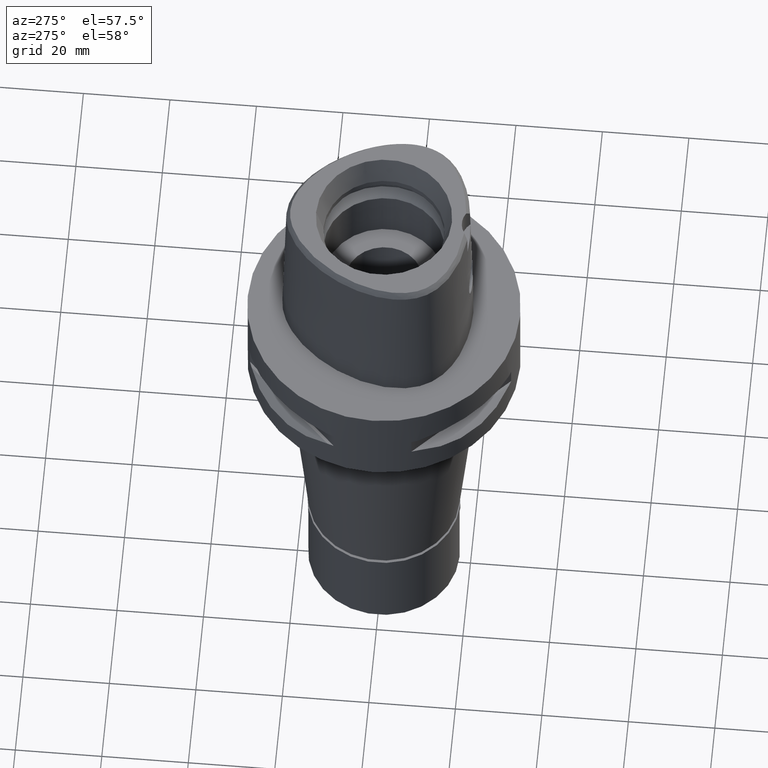
[diagram: clean part render]
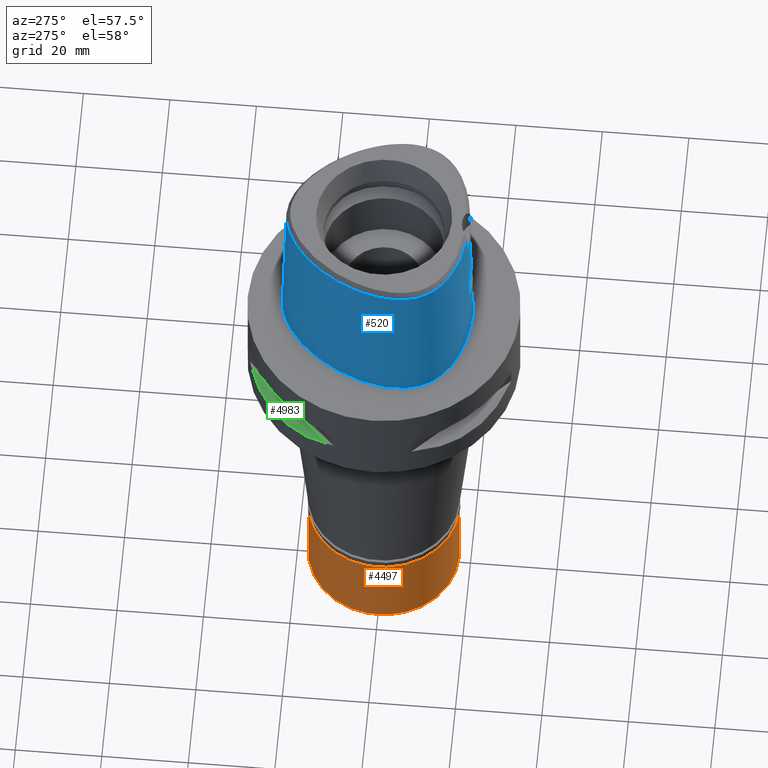
[diagram: same view with three faces highlighted in distinct colors, each labeled with its STEP entity id]
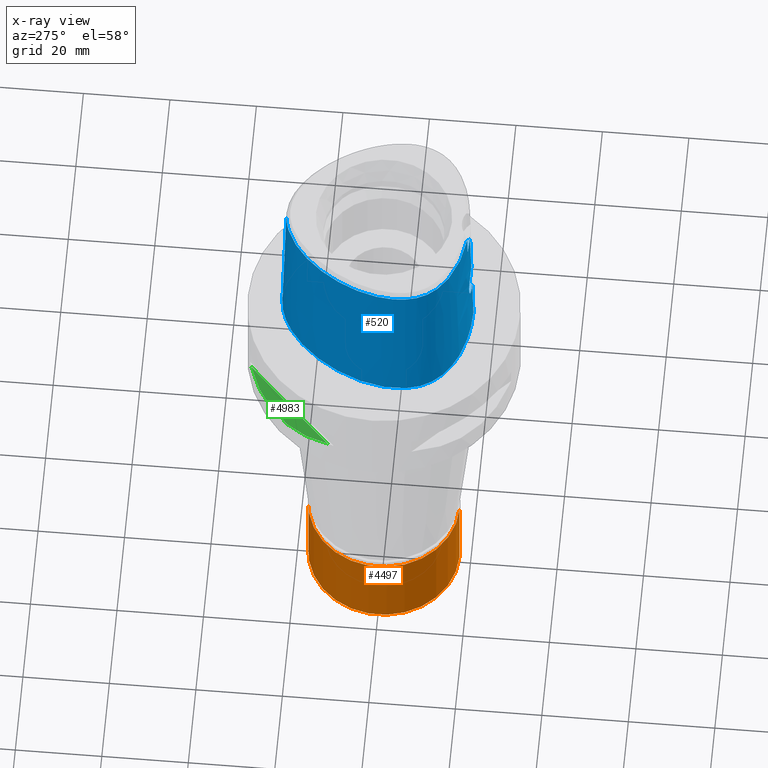
[diagram: x-ray of the same camera — body ghosted, the three highlighted faces saturated]
A machine part, auxiliary view with three faces highlighted in distinct colors.
The next image is the same camera in x-ray (body ghosted, the three faces saturated) — at least one of them is partly hidden behind the body in this view.
Their STEP definitions:

[orange] entity #4497 — the highlighted cylindrical surface (partial cylindrical patch) has radius 17.5 mm, axis along (0, 0, -1).
#84 = CARTESIAN_POINT ( 'NONE',  ( 0.0000000000000000000, 17.50000000000000000, -2.000000000000000000 ) ) ;
#106 = VECTOR ( 'NONE', #4389, 1000.000000000000000 ) ;
#219 = VERTEX_POINT ( 'NONE', #4888 ) ;
#545 = VERTEX_POINT ( 'NONE', #1805 ) ;
#663 = AXIS2_PLACEMENT_3D ( 'NONE', #930, #4034, #2815 ) ;
#737 = AXIS2_PLACEMENT_3D ( 'NONE', #1115, #1794, #2640 ) ;
#881 = LINE ( 'NONE', #3214, #4516 ) ;
#917 = CIRCLE ( 'NONE', #663, 17.50000000000000000 ) ;
#930 = CARTESIAN_POINT ( 'NONE',  ( 0.0000000000000000000, 0.0000000000000000000, -2.000000000000000000 ) ) ;
#1115 = CARTESIAN_POINT ( 'NONE',  ( 0.0000000000000000000, 0.0000000000000000000, -22.50000000000000000 ) ) ;
#1237 = ORIENTED_EDGE ( 'NONE', *, *, #1534, .T. ) ;
#1276 = ORIENTED_EDGE ( 'NONE', *, *, #3590, .T. ) ;
#1298 = AXIS2_PLACEMENT_3D ( 'NONE', #3730, #4879, #4431 ) ;
#1534 = EDGE_CURVE ( 'NONE', #219, #545, #3938, .T. ) ;
#1539 = CARTESIAN_POINT ( 'NONE',  ( 0.0000000000000000000, -17.50000000000000000, -22.50000000000000000 ) ) ;
#1683 = ORIENTED_EDGE ( 'NONE', *, *, #4956, .F. ) ;
#1794 = DIRECTION ( 'NONE',  ( 0.0000000000000000000, 0.0000000000000000000, 1.000000000000000000 ) ) ;
#1805 = CARTESIAN_POINT ( 'NONE',  ( 0.0000000000000000000, 17.50000000000000000, -22.50000000000000000 ) ) ;
#2175 = FACE_OUTER_BOUND ( 'NONE', #4182, .T. ) ;
#2204 = ORIENTED_EDGE ( 'NONE', *, *, #2780, .T. ) ;
#2323 = VERTEX_POINT ( 'NONE', #1539 ) ;
#2640 = DIRECTION ( 'NONE',  ( 0.0000000000000000000, 1.000000000000000000, 0.0000000000000000000 ) ) ;
#2780 = EDGE_CURVE ( 'NONE', #545, #2323, #3819, .T. ) ;
#2815 = DIRECTION ( 'NONE',  ( 0.0000000000000000000, -1.000000000000000000, 0.0000000000000000000 ) ) ;
#2882 = CYLINDRICAL_SURFACE ( 'NONE', #1298, 17.50000000000000000 ) ;
#3214 = CARTESIAN_POINT ( 'NONE',  ( 0.0000000000000000000, -17.50000000000000000, -2.000000000000000000 ) ) ;
#3238 = DIRECTION ( 'NONE',  ( 0.0000000000000000000, 0.0000000000000000000, -1.000000000000000000 ) ) ;
#3590 = EDGE_CURVE ( 'NONE', #4208, #219, #917, .T. ) ;
#3730 = CARTESIAN_POINT ( 'NONE',  ( 0.0000000000000000000, 0.0000000000000000000, 0.0000000000000000000 ) ) ;
#3819 = CIRCLE ( 'NONE', #737, 17.50000000000000000 ) ;
#3841 = CARTESIAN_POINT ( 'NONE',  ( 0.0000000000000000000, -17.50000000000000000, -2.000000000000000000 ) ) ;
#3938 = LINE ( 'NONE', #84, #106 ) ;
#4034 = DIRECTION ( 'NONE',  ( 0.0000000000000000000, 0.0000000000000000000, -1.000000000000000000 ) ) ;
#4182 = EDGE_LOOP ( 'NONE', ( #2204, #1683, #1276, #1237 ) ) ;
#4208 = VERTEX_POINT ( 'NONE', #3841 ) ;
#4389 = DIRECTION ( 'NONE',  ( 0.0000000000000000000, 0.0000000000000000000, -1.000000000000000000 ) ) ;
#4431 = DIRECTION ( 'NONE',  ( 0.0000000000000000000, -1.000000000000000000, 0.0000000000000000000 ) ) ;
#4497 = ADVANCED_FACE ( 'NONE', ( #2175 ), #2882, .T. ) ;
#4516 = VECTOR ( 'NONE', #3238, 1000.000000000000000 ) ;
#4879 = DIRECTION ( 'NONE',  ( 0.0000000000000000000, 0.0000000000000000000, -1.000000000000000000 ) ) ;
#4888 = CARTESIAN_POINT ( 'NONE',  ( 0.0000000000000000000, 17.50000000000000000, -2.000000000000000000 ) ) ;
#4956 = EDGE_CURVE ( 'NONE', #4208, #2323, #881, .T. ) ;

[blue] entity #520 — the highlighted face is a freeform B-spline surface patch.
#4 = CARTESIAN_POINT ( 'NONE',  ( -3.704239276368590961, -19.64128040965313460, 33.37395414949332917 ) ) ;
#6 = CARTESIAN_POINT ( 'NONE',  ( -2.870809693610187452, -20.24156730632852330, 12.64324605246986089 ) ) ;
#15 = ORIENTED_EDGE ( 'NONE', *, *, #1630, .F. ) ;
#32 = CARTESIAN_POINT ( 'NONE',  ( -3.848403410397717828, -20.04310851184499498, 16.79149714040717001 ) ) ;
#48 = ORIENTED_EDGE ( 'NONE', *, *, #388, .T. ) ;
#79 = CARTESIAN_POINT ( 'NONE',  ( -1.300728010709000004E-12, -20.38876923348000147, 11.44999999999999929 ) ) ;
#82 = CARTESIAN_POINT ( 'NONE',  ( -16.95889172622826280, -15.67838867224692301, -1.905867323226222154E-08 ) ) ;
#109 = B_SPLINE_CURVE_WITH_KNOTS ( 'NONE', 3,
 ( #1985, #1600, #4340, #870, #3145, #3959, #490, #3204, #4740, #4364, #898, #2434, #2459, #3322, #2905, #1749, #207, #4527, #2135, #4855, #1802, #3703, #970 ),
 .UNSPECIFIED., .F., .F.,
 ( 4, 1, 1, 1, 1, 1, 1, 1, 1, 1, 1, 1, 1, 1, 1, 1, 1, 1, 1, 1, 4 ),
 ( 0.0000000000000000000, 0.03580973941716267261, 0.1234633994701191395, 0.1672902294965448455, 0.2111170595230757452, 0.2549438895495014235, 0.2768573045627142348, 0.2987707195759271017, 0.3206841345891399131, 0.3425975496023527800, 0.3864243796288835964, 0.4302512096552040255, 0.4740780396817349529, 0.5617316997345863649, 0.6493853597875427486, 0.7370390198403942161, 0.8246926798932454616, 0.8685195099196710844, 0.9123463399461705370, 0.9561731699726067069, 1.000000000000000000 ),
 .UNSPECIFIED. ) ;
#130 = CARTESIAN_POINT ( 'NONE',  ( -22.05732874369826746, -6.847636718817725843, -1.905867323226222154E-08 ) ) ;
#175 = ORIENTED_EDGE ( 'NONE', *, *, #1945, .F. ) ;
#191 = CARTESIAN_POINT ( 'NONE',  ( -21.76083719865000177, -6.805026055614000313, 11.93047924216999967 ) ) ;
#207 = CARTESIAN_POINT ( 'NONE',  ( -13.70645028111649033, 15.04851272300516918, 36.52186244847999319 ) ) ;
#210 = CARTESIAN_POINT ( 'NONE',  ( -19.86834446244999697, 4.339653722331000552, 37.25231273573999857 ) ) ;
#230 = CARTESIAN_POINT ( 'NONE',  ( -1.656252726929893671, -20.15609978928699064, 19.19765142506413014 ) ) ;
#238 = CARTESIAN_POINT ( 'NONE',  ( -1.042620331105000251E-11, -20.67499999999999716, 1.260473207290999897E-13 ) ) ;
#278 = CARTESIAN_POINT ( 'NONE',  ( -0.2473412322782437278, -20.18628283969000492, 19.54999999999999716 ) ) ;
#280 = CARTESIAN_POINT ( 'NONE',  ( -6.344715575919999573, -20.31619964533999934, -0.7304375046223999801 ) ) ;
#305 = CARTESIAN_POINT ( 'NONE',  ( 0.6840430852724000976, -20.68668154550000082, -0.7304375046223999801 ) ) ;
#331 = CARTESIAN_POINT ( 'NONE',  ( -3.952964639637182476, -20.08622609015915472, 14.60890045227376532 ) ) ;
#332 = CARTESIAN_POINT ( 'NONE',  ( -6.175998627111000339, -19.37631808787999788, 37.25231273573999857 ) ) ;
#359 = CARTESIAN_POINT ( 'NONE',  ( -2.857836109606429087, -20.09902107152586126, 18.36973246307253049 ) ) ;
#377 = CARTESIAN_POINT ( 'NONE',  ( 6.819983240112976965E-09, -19.98212988583090066, 27.71666688228239650 ) ) ;
#384 = CARTESIAN_POINT ( 'NONE',  ( -2.875757950340810609, -20.24102512592879677, 12.64823125461289521 ) ) ;
#388 = EDGE_CURVE ( 'NONE', #3133, #2103, #4115, .T. ) ;
#409 = CARTESIAN_POINT ( 'NONE',  ( -2.904838724128467664, -20.23782704190360704, 12.67778573503113471 ) ) ;
#440 = CARTESIAN_POINT ( 'NONE',  ( -3.474550157058655664, -20.06258684786187274, 17.58509941785006703 ) ) ;
#490 = CARTESIAN_POINT ( 'NONE',  ( -17.90324032096455298, -13.53935111955482817, 36.52186244847999319 ) ) ;
#514 = CARTESIAN_POINT ( 'NONE',  ( -1.592612062464957123, -20.34460894491118310, 11.77623291199202349 ) ) ;
#516 = CARTESIAN_POINT ( 'NONE',  ( -2.564517727055091179, 23.29328125047070230, -1.905867323226222154E-08 ) ) ;
#520 = ADVANCED_FACE ( 'NONE', ( #951 ), #3775, .T. ) ;
#524 = CARTESIAN_POINT ( 'NONE',  ( -21.36961517491999984, -0.3886497612876000374, 24.59139598895000134 ) ) ;
#543 = CARTESIAN_POINT ( 'NONE',  ( -7.580410837940000590, 21.33037925912000077, -0.7304375046223999801 ) ) ;
#567 = CARTESIAN_POINT ( 'NONE',  ( -0.6149727124666999334, 23.51889464490000137, -0.7304375046223999801 ) ) ;
#595 = CARTESIAN_POINT ( 'NONE',  ( -21.57281238842000093, -9.001246193935999784, -0.7304375046223999801 ) ) ;
#615 = CARTESIAN_POINT ( 'NONE',  ( -1.435263460293925819, -20.16346600381253040, 19.28743623777244309 ) ) ;
#636 = ORIENTED_EDGE ( 'NONE', *, *, #1570, .T. ) ;
#684 = CARTESIAN_POINT ( 'NONE',  ( 0.4560943669544999524, -20.69106768042000155, -0.7304375046223999801 ) ) ;
#706 = CARTESIAN_POINT ( 'NONE',  ( -3.921269265875852561, -20.09311890564765335, 14.47775228275580872 ) ) ;
#707 = CARTESIAN_POINT ( 'NONE',  ( -20.94844325466000257, -10.61175396820999950, -0.7304375046223999801 ) ) ;
#735 = CARTESIAN_POINT ( 'NONE',  ( -3.704467467890589560, -20.04996865237293591, 17.13733399074684272 ) ) ;
#765 = CARTESIAN_POINT ( 'NONE',  ( -3.623054736480678883, -20.05423874947347684, 17.31100359227538732 ) ) ;
#787 = CARTESIAN_POINT ( 'NONE',  ( -2.236225399044929674, -20.13170464962383122, 18.87669531694418978 ) ) ;
#814 = CARTESIAN_POINT ( 'NONE',  ( -3.744859968352565627, -20.12555785049274704, 13.95773689203759638 ) ) ;
#818 = CARTESIAN_POINT ( 'NONE',  ( 5.537052840691000171E-11, 23.47499999999000053, 1.231977482991999938E-13 ) ) ;
#821 = CARTESIAN_POINT ( 'NONE',  ( -1.300728010709000004E-12, -20.38876923348000147, 11.44999999999999929 ) ) ;
#870 = CARTESIAN_POINT ( 'NONE',  ( -10.91891098964882367, -18.03046406390372525, 36.52186244847999319 ) ) ;
#898 = CARTESIAN_POINT ( 'NONE',  ( -20.67704215115812616, -8.734985316449673576, 36.52186244847999319 ) ) ;
#903 = CARTESIAN_POINT ( 'NONE',  ( 0.4823619555720999874, 23.48603817776999847, -0.7304375046223999801 ) ) ;
#922 = EDGE_CURVE ( 'NONE', #2103, #4147, #1855, .T. ) ;
#925 = CARTESIAN_POINT ( 'NONE',  ( -0.8548392423343361690, 23.47500000047769930, -1.905867323226222154E-08 ) ) ;
#931 = CARTESIAN_POINT ( 'NONE',  ( 0.6850314194548999813, 22.83959063240000020, 24.59139598895000134 ) ) ;
#944 = CARTESIAN_POINT ( 'NONE',  ( -1.812541018710777552, -20.33144879143533501, 11.87771303032907255 ) ) ;
#951 = FACE_OUTER_BOUND ( 'NONE', #3797, .T. ) ;
#970 = CARTESIAN_POINT ( 'NONE',  ( -1.605102685647000189E-11, 22.56201468012000078, 36.52186680743999858 ) ) ;
#976 = CARTESIAN_POINT ( 'NONE',  ( -14.42198651666000053, 15.65278599968000073, -0.7304375046223999801 ) ) ;
#1006 = CARTESIAN_POINT ( 'NONE',  ( -17.53318591718999642, 10.12278937890000030, 24.59139598895000134 ) ) ;
#1026 = CARTESIAN_POINT ( 'NONE',  ( -1.543048130381289074, -20.15993798682084659, 19.24453660913574282 ) ) ;
#1027 = CARTESIAN_POINT ( 'NONE',  ( -11.13012658271999911, -18.61140123515000155, 11.93047924216999967 ) ) ;
#1049 = CARTESIAN_POINT ( 'NONE',  ( -14.21104807808999837, -16.40237719935000271, 37.25231273573999857 ) ) ;
#1078 = CARTESIAN_POINT ( 'NONE',  ( -16.97022730838000371, -15.69280482769000074, -0.7304375046223999801 ) ) ;
#1099 = CARTESIAN_POINT ( 'NONE',  ( -3.830499027160743086, -20.11062698623123524, 14.18153512545000794 ) ) ;
#1101 = CARTESIAN_POINT ( 'NONE',  ( -1.886862291998999908, -20.71358859473999914, -0.7304375046223999801 ) ) ;
#1122 = CARTESIAN_POINT ( 'NONE',  ( -2.696415149899702879, -20.10825975497923679, 18.52316981035092169 ) ) ;
#1124 = CARTESIAN_POINT ( 'NONE',  ( 0.4520368091116000464, -20.37458467777000237, 11.93047924216999967 ) ) ;
#1151 = CARTESIAN_POINT ( 'NONE',  ( -3.637738201363999835, -19.56971413236999879, 36.52186244848000030 ) ) ;
#1154 = CARTESIAN_POINT ( 'NONE',  ( -3.089131642920630583, -20.21685897408095656, 12.88004451868196654 ) ) ;
#1180 = CARTESIAN_POINT ( 'NONE',  ( -4.049848995936174312, -20.05861656952050609, 15.25314035234744559 ) ) ;
#1205 = CARTESIAN_POINT ( 'NONE',  ( -3.748882549353983240, -20.12487725615872236, 13.96753193210200727 ) ) ;
#1257 = CARTESIAN_POINT ( 'NONE',  ( -10.74572891090422111, 19.17433593786475043, -1.905867323226222154E-08 ) ) ;
#1283 = VERTEX_POINT ( 'NONE', #4976 ) ;
#1288 = CARTESIAN_POINT ( 'NONE',  ( -2.373090352893000077, 22.37624364048000203, 37.25231273573999857 ) ) ;
#1311 = CARTESIAN_POINT ( 'NONE',  ( 0.7234356448558999508, 23.47140592231999889, -0.7304375046223999801 ) ) ;
#1313 = ORIENTED_EDGE ( 'NONE', *, *, #4562, .F. ) ;
#1315 = VERTEX_POINT ( 'NONE', #821 ) ;
#1335 = CARTESIAN_POINT ( 'NONE',  ( -18.08416037937000098, 10.44089486993999927, -0.7304375046223999801 ) ) ;
#1356 = CARTESIAN_POINT ( 'NONE',  ( 0.6658293067543999966, 22.52368298743000352, 37.25231273573999857 ) ) ;
#1378 = CARTESIAN_POINT ( 'NONE',  ( -17.25769868609999946, 9.963736633383000196, 37.25231273573999857 ) ) ;
#1403 = CARTESIAN_POINT ( 'NONE',  ( -2.095753548414850620, -20.13818364214428058, 18.96577014705866304 ) ) ;
#1404 = CARTESIAN_POINT ( 'NONE',  ( -19.66427014271999951, -12.83600704414999960, -0.7304375046223999801 ) ) ;
#1423 = CARTESIAN_POINT ( 'NONE',  ( 0.4439216934258999880, -19.74161867245999957, 37.25231273573999857 ) ) ;
#1444 = CARTESIAN_POINT ( 'NONE',  ( -6.232237610047000054, -19.68961194036999984, 24.59139598895000134 ) ) ;
#1470 = CARTESIAN_POINT ( 'NONE',  ( -2.187955111052514390, -20.13397228737158429, 18.90818030783675852 ) ) ;
#1472 = CARTESIAN_POINT ( 'NONE',  ( -17.88993667688999878, -13.52675031937000050, 37.25231273573999857 ) ) ;
#1491 = CARTESIAN_POINT ( 'NONE',  ( -2.823299992937056135, -20.10104229143709276, 18.40378355436299529 ) ) ;
#1493 = CARTESIAN_POINT ( 'NONE',  ( -11.23887130101999965, -18.91049775602000338, -0.7304375046223999801 ) ) ;
#1518 = CARTESIAN_POINT ( 'NONE',  ( -4.048193638326213595, -20.04945813672254573, 15.62509932612366192 ) ) ;
#1549 = CARTESIAN_POINT ( 'NONE',  ( -3.294464282139042854, -20.19175818983875814, 13.14063372506621796 ) ) ;
#1570 = EDGE_CURVE ( 'NONE', #4136, #3133, #109, .T. ) ;
#1576 = CARTESIAN_POINT ( 'NONE',  ( -3.698122373792616546, -20.13343971463959647, 13.84482020408002789 ) ) ;
#1578 = CARTESIAN_POINT ( 'NONE',  ( -18.06826688568335726, 10.43171875024557949, -1.905867323226222154E-08 ) ) ;
#1597 = CARTESIAN_POINT ( 'NONE',  ( -1.758544761671194445, -20.33485355119340809, 11.85123508312359064 ) ) ;
#1599 = CARTESIAN_POINT ( 'NONE',  ( -18.56841065177191297, -14.16937988314320229, -1.905867323226222154E-08 ) ) ;
#1600 = CARTESIAN_POINT ( 'NONE',  ( -4.467522189394759202, -19.48130287050514298, 36.52186244847999319 ) ) ;
#1625 = CARTESIAN_POINT ( 'NONE',  ( -14.67337964443133380, -17.21410156291201687, -1.905867323226222154E-08 ) ) ;
#1630 = EDGE_CURVE ( 'NONE', #1315, #4147, #4129, .T. ) ;
#1653 = CARTESIAN_POINT ( 'NONE',  ( -1.554881956804979204, -20.34669101430225524, 11.76035872671680060 ) ) ;
#1662 = CARTESIAN_POINT ( 'NONE',  ( -4.750826260693000513, 21.65775815844999741, 37.25231273573999857 ) ) ;
#1677 = CARTESIAN_POINT ( 'NONE',  ( -20.93173252255313699, -10.60431640644926787, -1.905867323226222154E-08 ) ) ;
#1682 = CARTESIAN_POINT ( 'NONE',  ( -21.62788416947000059, -4.104079497488999806, 24.59139598895000134 ) ) ;
#1698 = CARTESIAN_POINT ( 'NONE',  ( -1.035503055404373818, -20.37488775911209515, 11.54570873351844007 ) ) ;
#1707 = CARTESIAN_POINT ( 'NONE',  ( -10.14358084917999925, 18.45723428822000045, 37.25231273573999857 ) ) ;
#1732 = CARTESIAN_POINT ( 'NONE',  ( -21.44619311054000121, -6.759806576368999842, 24.59139598895000134 ) ) ;
#1749 = CARTESIAN_POINT ( 'NONE',  ( -17.27359245833708101, 9.972912913898538179, 36.52186244847999319 ) ) ;
#1753 = CARTESIAN_POINT ( 'NONE',  ( -21.26836749742999899, -8.910752269881999865, 11.93047924216999967 ) ) ;
#1775 = CARTESIAN_POINT ( 'NONE',  ( -1.768917262173088867, -20.15190475906380030, 19.14568281053183796 ) ) ;
#1777 = CARTESIAN_POINT ( 'NONE',  ( -18.89485297036000233, -12.27684387296000068, 37.25231273573999857 ) ) ;
#1802 = CARTESIAN_POINT ( 'NONE',  ( -2.376843896518320065, 22.39422508474270401, 36.52186244847999319 ) ) ;
#1824 = CARTESIAN_POINT ( 'NONE',  ( -0.5036866637249096668, -20.18406862059043760, 19.52728785669985001 ) ) ;
#1825 = CARTESIAN_POINT ( 'NONE',  ( -6.288476592983999858, -20.00290579286000181, 11.93047924216999967 ) ) ;
#1849 = CARTESIAN_POINT ( 'NONE',  ( -18.12052913882000027, -13.74516036707000133, 24.59139598895000134 ) ) ;
#1855 = B_SPLINE_CURVE_WITH_KNOTS ( 'NONE', 3,
 ( #818, #925, #516, #3629, #2078, #1257, #2838, #1578, #2761, #2059, #3608, #130, #2004, #1677, #3226, #3557, #1599, #82, #1625, #3143, #3176, #3119, #4715 ),
 .UNSPECIFIED., .F., .F.,
 ( 4, 1, 1, 1, 1, 1, 1, 1, 1, 1, 1, 1, 1, 1, 1, 1, 1, 1, 1, 1, 4 ),
 ( 0.0000000000000000000, 0.04166666666751999565, 0.08333333333413001087, 0.1250000000007999990, 0.1666666666674000152, 0.2500000000006000200, 0.3333333333337999971, 0.4166666666671000052, 0.5000000000002999823, 0.5416666666670000296, 0.5833333333335000148, 0.6250000000001999512, 0.6458333333335000148, 0.6666666666667999674, 0.6875000000001000311, 0.7083333333333999837, 0.7500000000000000000, 0.7916666666667000474, 0.8333333333333000637, 0.9166666666666000163, 1.000000000000000000 ),
 .UNSPECIFIED. ) ;
#1880 = CARTESIAN_POINT ( 'NONE',  ( -3.388781880796850388, -20.17907268769689111, 13.28211842279059951 ) ) ;
#1883 = CARTESIAN_POINT ( 'NONE',  ( -14.36818037507000057, -16.67825737506000294, 24.59139598895000134 ) ) ;
#1903 = CARTESIAN_POINT ( 'NONE',  ( -3.755562140673627702, -20.12374194796139193, 13.98397501487714223 ) ) ;
#1925 = VERTEX_POINT ( 'NONE', #3880 ) ;
#1926 = CARTESIAN_POINT ( 'NONE',  ( -3.553766164806683392, -20.15576042543187540, 13.55638603583821222 ) ) ;
#1945 = EDGE_CURVE ( 'NONE', #4136, #2732, #4629, .T. ) ;
#1954 = CARTESIAN_POINT ( 'NONE',  ( -2.421503357379948262, -20.28648737493531939, 12.24279215500327389 ) ) ;
#1981 = CARTESIAN_POINT ( 'NONE',  ( -1.678454493248099144, -20.33967188086277744, 11.81405957882488345 ) ) ;
#1985 = CARTESIAN_POINT ( 'NONE',  ( -3.637738201363999835, -19.56971413236999879, 36.52186244848000030 ) ) ;
#2003 = CARTESIAN_POINT ( 'NONE',  ( 5.537052840691000171E-11, 23.47499999999000053, 1.231977482991999938E-13 ) ) ;
#2004 = CARTESIAN_POINT ( 'NONE',  ( -21.55524826055195575, -8.996025390761413831, -1.905867323226222154E-08 ) ) ;
#2043 = CARTESIAN_POINT ( 'NONE',  ( -0.5821289320346000329, 22.88453105477000094, 24.59139598895000134 ) ) ;
#2059 = CARTESIAN_POINT ( 'NONE',  ( -21.97832647834080078, -0.2810937499166801246, -1.905867323226222154E-08 ) ) ;
#2065 = CARTESIAN_POINT ( 'NONE',  ( -4.868968478619000173, 21.95285551841000071, 24.59139598895000134 ) ) ;
#2078 = CARTESIAN_POINT ( 'NONE',  ( -7.571159434592121151, 21.31457031291499149, -1.905867323226222154E-08 ) ) ;
#2084 = CARTESIAN_POINT ( 'NONE',  ( -7.420053175726001093, 21.05635751774999775, 11.93047924216999967 ) ) ;
#2103 = VERTEX_POINT ( 'NONE', #2003 ) ;
#2113 = CARTESIAN_POINT ( 'NONE',  ( -20.76670354500000215, 4.663413652503000328, -0.7304375046223999801 ) ) ;
#2135 = CARTESIAN_POINT ( 'NONE',  ( -7.108589416785594750, 20.52412325828365525, 36.52186244847999319 ) ) ;
#2138 = CARTESIAN_POINT ( 'NONE',  ( 0.4441907117464000132, 22.53710802772999955, 37.25231273573999857 ) ) ;
#2155 = CARTESIAN_POINT ( 'NONE',  ( -1.517038990534187226, -20.16080850842839567, 19.25515252244158759 ) ) ;
#2177 = CARTESIAN_POINT ( 'NONE',  ( -11.02138186442000034, -18.31230471429000062, 24.59139598895000134 ) ) ;
#2186 = DIRECTION ( 'NONE',  ( 1.954972615637959326E-12, 0.02499051290953949525, -0.9996876883629797206 ) ) ;
#2200 = CARTESIAN_POINT ( 'NONE',  ( -1.300728010709000004E-12, -20.38876923348000147, 11.44999999999999929 ) ) ;
#2211 = EDGE_CURVE ( 'NONE', #1925, #2732, #4692, .T. ) ;
#2224 = CARTESIAN_POINT ( 'NONE',  ( -16.77374387928999866, -15.44292479349000047, 11.93047924216999967 ) ) ;
#2246 = CARTESIAN_POINT ( 'NONE',  ( -3.862607746693165200, -20.10460055501438248, 14.28038032243066624 ) ) ;
#2249 = CARTESIAN_POINT ( 'NONE',  ( -20.09084480806999906, -11.59945465762000083, 11.93047924216999967 ) ) ;
#2275 = CARTESIAN_POINT ( 'NONE',  ( -3.765489374950850454, -20.12204791086957201, 14.00864527312965357 ) ) ;
#2301 = CARTESIAN_POINT ( 'NONE',  ( -3.738021026999547747, -20.04832921641929033, 17.05876513949582929 ) ) ;
#2322 = CARTESIAN_POINT ( 'NONE',  ( -3.736722311398999796, -19.67781602443999844, 31.80000000000000071 ) ) ;
#2324 = CARTESIAN_POINT ( 'NONE',  ( -3.724287987559096180, -20.04899117660409757, 17.09139312267861754 ) ) ;
#2347 = VECTOR ( 'NONE', #4899, 1000.000000000000114 ) ;
#2353 = CARTESIAN_POINT ( 'NONE',  ( -3.408875187705913135, -20.17633333109255744, 13.31312751153962637 ) ) ;
#2428 = CARTESIAN_POINT ( 'NONE',  ( -2.086814383339309575, -20.31269213283853503, 12.02647857451320235 ) ) ;
#2434 = CARTESIAN_POINT ( 'NONE',  ( -21.14970188363441750, -6.717195958887558938, 36.52186244847999319 ) ) ;
#2440 = CARTESIAN_POINT ( 'NONE',  ( -21.99640701162000056, -0.2778990169915000474, -0.7304375046223999801 ) ) ;
#2459 = CARTESIAN_POINT ( 'NONE',  ( -21.32871527669566447, -4.105831244393725044, 36.52186244847999319 ) ) ;
#2464 = CARTESIAN_POINT ( 'NONE',  ( -2.438150636888000378, 22.68791655352000092, 24.59139598895000134 ) ) ;
#2476 = CARTESIAN_POINT ( 'NONE',  ( -1.559921522258002735, -20.34641501698342836, 11.76246137009469805 ) ) ;
#2483 = CARTESIAN_POINT ( 'NONE',  ( -22.26285556100000207, -4.100361500073999466, -0.7304375046223999801 ) ) ;
#2506 = B_SPLINE_CURVE_WITH_KNOTS ( 'NONE', 3,
 ( #3052, #377, #3084, #4595 ),
 .UNSPECIFIED., .F., .F.,
 ( 4, 4 ),
 ( 0.0000000000000000000, 1.000000000000000000 ),
 .UNSPECIFIED. ) ;
#2508 = CARTESIAN_POINT ( 'NONE',  ( -20.46725051748000013, 4.555493675778999219, 11.93047924216999967 ) ) ;
#2533 = CARTESIAN_POINT ( 'NONE',  ( -2.503210920883999879, 22.99958946655999981, 11.93047924216999967 ) ) ;
#2553 = CARTESIAN_POINT ( 'NONE',  ( -2.141634863663407717, -20.13611892945429105, 18.93776449056396416 ) ) ;
#2577 = CARTESIAN_POINT ( 'NONE',  ( -10.91263714611000069, -18.01320819342000235, 37.25231273573999857 ) ) ;
#2592 = CARTESIAN_POINT ( 'NONE',  ( -3.736722311398999796, -19.67781602443999844, 31.80000000000000071 ) ) ;
#2603 = CARTESIAN_POINT ( 'NONE',  ( -1.853278699760999793, -20.08023940082999914, 24.59139598895000134 ) ) ;
#2627 = CARTESIAN_POINT ( 'NONE',  ( -2.467128207655710614, -20.12044499745019266, 18.71456023906526056 ) ) ;
#2628 = CARTESIAN_POINT ( 'NONE',  ( 0.6779535356828000348, -20.37023529614000239, 11.93047924216999967 ) ) ;
#2649 = CARTESIAN_POINT ( 'NONE',  ( -3.081149392577405166, -20.08583124627778105, 18.14629112890300533 ) ) ;
#2650 = CARTESIAN_POINT ( 'NONE',  ( 0.6657744365035001000, -19.73734279743000286, 37.25231273573999857 ) ) ;
#2685 = CARTESIAN_POINT ( 'NONE',  ( -2.945118222696918142, -20.23335776654030127, 12.71958560101020730 ) ) ;
#2706 = CARTESIAN_POINT ( 'NONE',  ( -3.649474620159721017, -20.05281468735726591, 17.25706831817002396 ) ) ;
#2726 = CARTESIAN_POINT ( 'NONE',  ( -3.925407708630975545, -20.04099055260221363, 16.53138977182821634 ) ) ;
#2732 = VERTEX_POINT ( 'NONE', #2592 ) ;
#2761 = CARTESIAN_POINT ( 'NONE',  ( -20.74942740924770845, 4.657187500162146776, -1.905867323226222154E-08 ) ) ;
#2807 = CARTESIAN_POINT ( 'NONE',  ( -1.638635025836901349, -20.34200884320553371, 11.79610711465294237 ) ) ;
#2816 = CARTESIAN_POINT ( 'NONE',  ( -4.987110696544999833, 22.24795287835999957, 11.93047924216999967 ) ) ;
#2817 = ORIENTED_EDGE ( 'NONE', *, *, #2211, .T. ) ;
#2838 = CARTESIAN_POINT ( 'NONE',  ( -14.40795638994645067, 15.64093750030242091, -1.905867323226222154E-08 ) ) ;
#2845 = CARTESIAN_POINT ( 'NONE',  ( -0.5657070418185999872, 22.56734925969999850, 37.25231273573999857 ) ) ;
#2860 = CARTESIAN_POINT ( 'NONE',  ( -2.503154198992994406, -19.81241979316154911, 31.80000012753027150 ) ) ;
#2865 = CARTESIAN_POINT ( 'NONE',  ( -21.05621925657000304, -0.4440251334356000168, 37.25231273573999857 ) ) ;
#2905 = CARTESIAN_POINT ( 'NONE',  ( -19.88562090098500335, 4.345879983791816059, 36.52186244847999319 ) ) ;
#2911 = CARTESIAN_POINT ( 'NONE',  ( -20.96392260645000150, -8.820258345827999946, 24.59139598895000134 ) ) ;
#2957 = CARTESIAN_POINT ( 'NONE',  ( -19.40779775194000223, -12.64961932042000115, 11.93047924216999967 ) ) ;
#2981 = CARTESIAN_POINT ( 'NONE',  ( -1.320565687276267441, -20.16697761691573376, 19.32976498245970376 ) ) ;
#2984 = CARTESIAN_POINT ( 'NONE',  ( -19.81622837480000143, -11.44090478533999899, 24.59139598895000134 ) ) ;
#3011 = CARTESIAN_POINT ( 'NONE',  ( -2.841055161952164010, -20.10000556631501567, 18.38634273630945870 ) ) ;
#3012 = CARTESIAN_POINT ( 'NONE',  ( -18.58171406269000059, -14.18198046248999944, -0.7304375046223999801 ) ) ;
#3034 = CARTESIAN_POINT ( 'NONE',  ( -3.538328569005044333, -20.05892019842456264, 17.47427695038981810 ) ) ;
#3035 = CARTESIAN_POINT ( 'NONE',  ( -19.54161194153999759, -11.28235491307000160, 37.25231273573999857 ) ) ;
#3045 = EDGE_CURVE ( 'NONE', #1925, #1283, #2506, .T. ) ;
#3052 = CARTESIAN_POINT ( 'NONE',  ( 2.041042029990999821E-08, -19.88004246002000031, 31.80000004972000127 ) ) ;
#3061 = CARTESIAN_POINT ( 'NONE',  ( -3.466483550186857610, -20.16833646136318947, 13.40542637771266676 ) ) ;
#3084 = CARTESIAN_POINT ( 'NONE',  ( 6.839967694335260368E-09, -20.08420636275953797, 23.63333344114115775 ) ) ;
#3095 = CARTESIAN_POINT ( 'NONE',  ( -2.647727988100973207, -20.26593689667726750, 12.42012271607942786 ) ) ;
#3117 = CARTESIAN_POINT ( 'NONE',  ( -4.019649019913003940, -20.04316019033985086, 16.01163126943011861 ) ) ;
#3119 = CARTESIAN_POINT ( 'NONE',  ( -2.113823673092658506, -20.67500000047413877, -1.905867323226222154E-08 ) ) ;
#3133 = VERTEX_POINT ( 'NONE', #3822 ) ;
#3143 = CARTESIAN_POINT ( 'NONE',  ( -11.23259756743561688, -18.89324218795852062, -1.905867323226222154E-08 ) ) ;
#3145 = CARTESIAN_POINT ( 'NONE',  ( -14.22011356155871731, -16.41829364186573059, 36.52186244847999319 ) ) ;
#3176 = CARTESIAN_POINT ( 'NONE',  ( -6.341471019296731626, -20.29812500047623658, -1.905867323226222154E-08 ) ) ;
#3204 = CARTESIAN_POINT ( 'NONE',  ( -18.90964971338213019, -12.28759719904713776, 36.52186244847999319 ) ) ;
#3209 = CARTESIAN_POINT ( 'NONE',  ( -7.099337851296999347, 20.50831403500999883, 37.25231273573999857 ) ) ;
#3226 = CARTESIAN_POINT ( 'NONE',  ( -20.34961798598781257, -11.74885742211308148, -1.905867323226222154E-08 ) ) ;
#3232 = CARTESIAN_POINT ( 'NONE',  ( -22.07548128676999966, -6.850245534860000873, -0.7304375046223999801 ) ) ;
#3249 = CARTESIAN_POINT ( 'NONE',  ( -1.975954942184611873, -20.32065689222564231, 11.96260358355417353 ) ) ;
#3260 = CARTESIAN_POINT ( 'NONE',  ( -14.17879764727999969, 15.44741200510999946, 11.93047924216999967 ) ) ;
#3280 = CARTESIAN_POINT ( 'NONE',  ( -21.13154902242000333, -6.714587097123000170, 37.25231273573999857 ) ) ;
#3310 = B_SPLINE_CURVE_WITH_KNOTS ( 'NONE', 3,
 ( #3758, #278, #1824, #4106, #3704, #3377, #2981, #615, #4480, #2155, #4531, #1026, #230, #1775, #3325, #4857, #1403, #2553, #1470, #3429, #787, #3833, #2627, #4950, #1122, #4178, #1491, #3011, #4234, #359, #2649, #4203, #440, #3034, #765, #2706, #4556, #735, #2324, #4581, #2301, #3805, #32, #2726, #4636, #3117, #4660, #4284, #1518, #3474, #4258, #1180, #3503, #331, #706, #2246, #1099, #3400, #2275, #1903, #1205, #814, #1576, #3882, #1926, #4925, #3061, #3451, #2353, #1880, #4973, #1549, #3915, #1154, #4604, #2685, #409, #3856, #384, #6, #3095, #1954, #2428, #3249, #944, #1597, #1981, #2807, #514, #4025, #2476, #1653, #1698, #3528, #79 ),
 .UNSPECIFIED., .F., .F.,
 ( 4, 2, 2, 1, 1, 1, 2, 2, 2, 2, 1, 2, 2, 2, 1, 1, 1, 2, 2, 2, 2, 2, 1, 1, 2, 2, 2, 2, 1, 2, 2, 2, 2, 1, 1, 1, 2, 2, 2, 2, 1, 2, 2, 2, 1, 1, 1, 2, 2, 2, 2, 2, 1, 1, 2, 2, 4 ),
 ( 0.0000000000000000000, 0.06249999999999593381, 0.09374999999999392153, 0.1093749999999928252, 0.1171874999999922839, 0.1210937499999920203, 0.1230468749999917427, 0.1249999999999914652, 0.1562499999999855671, 0.1718749999999823752, 0.1796874999999809874, 0.1835937499999802658, 0.1874999999999795441, 0.2187499999999769351, 0.2343749999999756306, 0.2421874999999752420, 0.2460937499999747702, 0.2480468749999745204, 0.2499999999999742428, 0.3124999999999652500, 0.3437499999999607536, 0.3593749999999589217, 0.3671874999999575895, 0.3710937499999568678, 0.3730468749999569789, 0.3749999999999570899, 0.4374999999999615308, 0.4687499999999638067, 0.4843749999999649170, 0.4921874999999659162, 0.4999999999999669154, 0.5624999999999765743, 0.5937499999999816813, 0.6093749999999842348, 0.6171874999999854561, 0.6210937499999861222, 0.6230468749999863443, 0.6249999999999865663, 0.6562499999999905631, 0.6718749999999925615, 0.6796874999999936717, 0.6835937499999940048, 0.6874999999999944489, 0.7187499999999966693, 0.7343749999999975575, 0.7421874999999980016, 0.7460937499999982236, 0.7480468749999983347, 0.7499999999999983347, 0.8124999999999994449, 0.8437499999999997780, 0.8593749999999997780, 0.8671874999999998890, 0.8710937499999998890, 0.8730468749999997780, 0.8749999999999997780, 1.000000000000000000 ),
 .UNSPECIFIED. ) ;
#3319 = CARTESIAN_POINT ( 'NONE',  ( -3.736722311398999796, -19.67781602443999844, 31.80000000000000071 ) ) ;
#3322 = CARTESIAN_POINT ( 'NONE',  ( -21.07430010672983656, -0.4408303445193160752, 36.52186244847999319 ) ) ;
#3325 = CARTESIAN_POINT ( 'NONE',  ( -1.944872162933173332, -20.14473830020670775, 19.05307826098763613 ) ) ;
#3334 = CARTESIAN_POINT ( 'NONE',  ( -3.637738201363999835, -19.56971413236999879, 36.52186244848000030 ) ) ;
#3377 = CARTESIAN_POINT ( 'NONE',  ( -1.222079501498656962, -20.16967619644332643, 19.36182732690445363 ) ) ;
#3379 = CARTESIAN_POINT ( 'NONE',  ( -20.36913785983999858, -10.35391848712000140, 24.59139598895000134 ) ) ;
#3400 = CARTESIAN_POINT ( 'NONE',  ( -3.788010122578853611, -20.11815763408451474, 14.06624340821270103 ) ) ;
#3402 = CARTESIAN_POINT ( 'NONE',  ( -19.15132536115000050, -12.46323159668999914, 24.59139598895000134 ) ) ;
#3429 = CARTESIAN_POINT ( 'NONE',  ( -2.218923952810184286, -20.13252298611807234, 18.88809933005989095 ) ) ;
#3430 = CARTESIAN_POINT ( 'NONE',  ( -14.52531267205000098, -16.95413755076999962, 11.93047924216999967 ) ) ;
#3438 = CARTESIAN_POINT ( 'NONE',  ( -1.605102685647000189E-11, 22.56201468012000078, 36.52186680743999858 ) ) ;
#3451 = CARTESIAN_POINT ( 'NONE',  ( -3.438474044887640968, -20.17226853620277538, 13.35950353148250436 ) ) ;
#3472 = CARTESIAN_POINT ( 'NONE',  ( -3.671249123513567802, -19.60525173594972514, 34.94790829898666829 ) ) ;
#3474 = CARTESIAN_POINT ( 'NONE',  ( -4.049663826248560916, -20.05088590020228168, 15.56119206774791230 ) ) ;
#3503 = CARTESIAN_POINT ( 'NONE',  ( -4.027530768679776330, -20.06783249596159635, 14.99855479655600732 ) ) ;
#3528 = CARTESIAN_POINT ( 'NONE',  ( -0.5047993661875627147, -20.38876923348000503, 11.44999999999999929 ) ) ;
#3557 = CARTESIAN_POINT ( 'NONE',  ( -19.64947365902260046, -12.82525390652307173, -1.905867323226222154E-08 ) ) ;
#3608 = CARTESIAN_POINT ( 'NONE',  ( -22.24453907902966066, -4.100468749996661444, -1.905867323226222154E-08 ) ) ;
#3613 = CARTESIAN_POINT ( 'NONE',  ( -13.69241990851000068, 15.03666401597000046, 37.25231273573999857 ) ) ;
#3629 = CARTESIAN_POINT ( 'NONE',  ( -5.098437017460804022, 22.52602539107423141, -1.905867323226222154E-08 ) ) ;
#3635 = CARTESIAN_POINT ( 'NONE',  ( -7.259695513510999731, 20.78233577638000185, 24.59139598895000134 ) ) ;
#3664 = CARTESIAN_POINT ( 'NONE',  ( -21.31039847370999851, -4.105938496195999932, 37.25231273573999857 ) ) ;
#3688 = CARTESIAN_POINT ( 'NONE',  ( -0.5985508222506998877, 23.20171284983000248, 11.93047924216999967 ) ) ;
#3703 = CARTESIAN_POINT ( 'NONE',  ( -0.7901461696976632698, 22.56201478746845623, 36.52186244847999319 ) ) ;
#3704 = CARTESIAN_POINT ( 'NONE',  ( -1.025211814385354803, -20.17465818941732891, 19.42048404905330372 ) ) ;
#3758 = CARTESIAN_POINT ( 'NONE',  ( 0.0000000000000000000, -20.18628283968999781, 19.55000000000000071 ) ) ;
#3775 = B_SPLINE_SURFACE_WITH_KNOTS ( 'NONE', 3, 3, ( 
 ( #1311, #4744, #931, #1356 ),
 ( #903, #4762, #4088, #2138 ),
 ( #567, #3688, #2043, #2845 ),
 ( #4832, #2533, #2464, #1288 ),
 ( #4011, #2816, #2065, #1662 ),
 ( #543, #2084, #3635, #3209 ),
 ( #4414, #4434, #4368, #1707 ),
 ( #976, #3260, #4791, #3613 ),
 ( #1335, #4067, #1006, #1378 ),
 ( #2113, #2508, #4813, #210 ),
 ( #2440, #3992, #524, #2865 ),
 ( #2483, #4036, #1682, #3664 ),
 ( #3232, #191, #1732, #3280 ),
 ( #595, #1753, #2911, #4107 ),
 ( #707, #4927, #3379, #4532 ),
 ( #4952, #2249, #2984, #3035 ),
 ( #1404, #2957, #3402, #1777 ),
 ( #3012, #4505, #1849, #1472 ),
 ( #1078, #2224, #4558, #4901 ),
 ( #3807, #3430, #1883, #1049 ),
 ( #1493, #1027, #2177, #2577 ),
 ( #280, #1825, #1444, #332 ),
 ( #1101, #4157, #2603, #4583 ),
 ( #684, #1124, #3781, #1423 ),
 ( #305, #2628, #4180, #2650 ) ),
 .UNSPECIFIED., .F., .F., .F.,
 ( 4, 1, 1, 1, 1, 1, 1, 1, 1, 1, 1, 1, 1, 1, 1, 1, 1, 1, 1, 1, 1, 1, 4 ),
 ( 4, 4 ),
 ( -0.01173777939052000029, 0.0000000000000000000, 0.04166666666751999565, 0.08333333333413001087, 0.1250000000007999990, 0.1666666666674000152, 0.2500000000006000200, 0.3333333333337999971, 0.4166666666671000052, 0.5000000000002999823, 0.5416666666670000296, 0.5833333333335000148, 0.6250000000001999512, 0.6458333333335000148, 0.6666666666667999674, 0.6875000000001000311, 0.7083333333333999837, 0.7500000000000000000, 0.7916666666667000474, 0.8333333333333000637, 0.9166666666666000163, 1.000000000000000000, 1.008985696609000060 ),
 ( 6.000221583479999909E-09, 0.9999996939886000025 ),
 .UNSPECIFIED. ) ;
#3781 = CARTESIAN_POINT ( 'NONE',  ( 0.4479792512688000050, -20.05810167511000230, 24.59139598895000134 ) ) ;
#3797 = EDGE_LOOP ( 'NONE', ( #15, #1313, #4978, #2817, #175, #636, #48, #4509 ) ) ;
#3805 = CARTESIAN_POINT ( 'NONE',  ( -3.740129524201757150, -20.04822853724978060, 17.05370687140962005 ) ) ;
#3807 = CARTESIAN_POINT ( 'NONE',  ( -14.68244496902000051, -17.23001772647999985, -0.7304375046223999801 ) ) ;
#3822 = CARTESIAN_POINT ( 'NONE',  ( -1.605102685647000189E-11, 22.56201468012000078, 36.52186680743999858 ) ) ;
#3833 = CARTESIAN_POINT ( 'NONE',  ( -2.360389010911050800, -20.12578017861218882, 18.79373387522195316 ) ) ;
#3856 = CARTESIAN_POINT ( 'NONE',  ( -2.887412005234532675, -20.23974548682601693, 12.66003157092501930 ) ) ;
#3880 = CARTESIAN_POINT ( 'NONE',  ( 2.041042029990999821E-08, -19.88004246002000031, 31.80000004972000127 ) ) ;
#3882 = CARTESIAN_POINT ( 'NONE',  ( -3.646271025386284670, -20.14180172674243963, 13.73229968810705515 ) ) ;
#3915 = CARTESIAN_POINT ( 'NONE',  ( -3.215358272887883562, -20.20174660046962245, 13.03391498473813748 ) ) ;
#3959 = CARTESIAN_POINT ( 'NONE',  ( -16.39211280191991449, -14.95758113319158689, 36.52186244847999319 ) ) ;
#3992 = CARTESIAN_POINT ( 'NONE',  ( -21.68301109326999665, -0.3332743891395000269, 11.93047924216999967 ) ) ;
#4011 = CARTESIAN_POINT ( 'NONE',  ( -5.105252914471000381, 22.54305023832000288, -0.7304375046223999801 ) ) ;
#4025 = CARTESIAN_POINT ( 'NONE',  ( -1.572984596531428858, -20.34569619827913201, 11.76794029727377122 ) ) ;
#4036 = CARTESIAN_POINT ( 'NONE',  ( -21.94536986522999911, -4.102220498782000568, 11.93047924216999967 ) ) ;
#4067 = CARTESIAN_POINT ( 'NONE',  ( -17.80867314828000403, 10.28184212442000067, 11.93047924216999967 ) ) ;
#4088 = CARTESIAN_POINT ( 'NONE',  ( 0.4569144596883000231, 22.85341807774999978, 24.59139598895000134 ) ) ;
#4106 = CARTESIAN_POINT ( 'NONE',  ( -0.8941136475798193706, -20.17742596329177118, 19.45229334933474163 ) ) ;
#4107 = CARTESIAN_POINT ( 'NONE',  ( -20.65947771545999956, -8.729764421775000116, 37.25231273573999857 ) ) ;
#4115 = LINE ( 'NONE', #3438, #4856 ) ;
#4129 = LINE ( 'NONE', #2200, #2347 ) ;
#4136 = VERTEX_POINT ( 'NONE', #3334 ) ;
#4147 = VERTEX_POINT ( 'NONE', #238 ) ;
#4157 = CARTESIAN_POINT ( 'NONE',  ( -1.870070495880000072, -20.39691399779000136, 11.93047924216999967 ) ) ;
#4178 = CARTESIAN_POINT ( 'NONE',  ( -2.781497320434850540, -20.10345565782016308, 18.44409576488488867 ) ) ;
#4180 = CARTESIAN_POINT ( 'NONE',  ( 0.6718639860931000518, -20.05378904678000040, 24.59139598895000134 ) ) ;
#4203 = CARTESIAN_POINT ( 'NONE',  ( -3.258446753581197175, -20.07522384658359016, 17.91983021284886846 ) ) ;
#4234 = CARTESIAN_POINT ( 'NONE',  ( -2.852856104025951023, -20.09931387729061569, 18.37467926461776813 ) ) ;
#4258 = CARTESIAN_POINT ( 'NONE',  ( -4.050018014422889223, -20.05167593067619691, 15.52805627100407371 ) ) ;
#4284 = CARTESIAN_POINT ( 'NONE',  ( -4.044848056823780347, -20.04744994059091923, 15.72117637690715064 ) ) ;
#4340 = CARTESIAN_POINT ( 'NONE',  ( -7.300578999875554587, -19.07170748891588730, 36.52186244847999319 ) ) ;
#4364 = CARTESIAN_POINT ( 'NONE',  ( -20.09619618741027836, -10.23243843868193892, 36.52186244847999319 ) ) ;
#4368 = CARTESIAN_POINT ( 'NONE',  ( -10.34823247788999900, 18.70095511019999890, 24.59139598895000134 ) ) ;
#4407 = CARTESIAN_POINT ( 'NONE',  ( 2.041042029990999821E-08, -19.88004246002000031, 31.80000004972000127 ) ) ;
#4414 = CARTESIAN_POINT ( 'NONE',  ( -10.75753573533000029, 19.18839675414999846, -0.7304375046223999801 ) ) ;
#4434 = CARTESIAN_POINT ( 'NONE',  ( -10.55288410661000142, 18.94467593218000090, 11.93047924216999967 ) ) ;
#4480 = CARTESIAN_POINT ( 'NONE',  ( -1.492522727690081874, -20.16161937968067974, 19.26502569008681931 ) ) ;
#4505 = CARTESIAN_POINT ( 'NONE',  ( -18.35112160075999910, -13.96357041477999950, 11.93047924216999967 ) ) ;
#4509 = ORIENTED_EDGE ( 'NONE', *, *, #922, .T. ) ;
#4527 = CARTESIAN_POINT ( 'NONE',  ( -10.15538788053240715, 18.47129535093662156, 36.52186244847999319 ) ) ;
#4531 = CARTESIAN_POINT ( 'NONE',  ( -1.533377486156251024, -20.16026360294686981, 19.24851053760685105 ) ) ;
#4532 = CARTESIAN_POINT ( 'NONE',  ( -20.07948516243000014, -10.22500074657000013, 37.25231273573999857 ) ) ;
#4556 = CARTESIAN_POINT ( 'NONE',  ( -3.686560471764692259, -20.05088322548417068, 17.17709135335520898 ) ) ;
#4558 = CARTESIAN_POINT ( 'NONE',  ( -16.57726045018999983, -15.19304475929000020, 24.59139598895000134 ) ) ;
#4562 = EDGE_CURVE ( 'NONE', #1283, #1315, #3310, .T. ) ;
#4581 = CARTESIAN_POINT ( 'NONE',  ( -3.732557508995177908, -20.04859144260194981, 17.07180291399460259 ) ) ;
#4583 = CARTESIAN_POINT ( 'NONE',  ( -1.836486903641000090, -19.76356480388000136, 37.25231273573999857 ) ) ;
#4595 = CARTESIAN_POINT ( 'NONE',  ( 0.0000000000000000000, -20.18628283968999781, 19.55000000000000071 ) ) ;
#4604 = CARTESIAN_POINT ( 'NONE',  ( -3.024127618929794981, -20.22444760030290567, 12.80466032897619222 ) ) ;
#4629 = B_SPLINE_CURVE_WITH_KNOTS ( 'NONE', 3,
 ( #1151, #3472, #4, #2322 ),
 .UNSPECIFIED., .F., .F.,
 ( 4, 4 ),
 ( 0.0000000000000000000, 1.000000000000000000 ),
 .UNSPECIFIED. ) ;
#4636 = CARTESIAN_POINT ( 'NONE',  ( -4.001055636210810285, -20.04208398455349993, 16.14154222857778009 ) ) ;
#4660 = CARTESIAN_POINT ( 'NONE',  ( -4.038031914720374260, -20.04584209172325160, 15.81781984753357762 ) ) ;
#4692 = B_SPLINE_CURVE_WITH_KNOTS ( 'NONE', 3,
 ( #4407, #4806, #2860, #3319 ),
 .UNSPECIFIED., .F., .F.,
 ( 4, 4 ),
 ( 0.0000000000000000000, 1.000000000000000000 ),
 .UNSPECIFIED. ) ;
#4715 = CARTESIAN_POINT ( 'NONE',  ( -1.042620331105000251E-11, -20.67499999999999716, 1.260473207290999897E-13 ) ) ;
#4740 = CARTESIAN_POINT ( 'NONE',  ( -19.55745547456157851, -11.29150218115974447, 36.52186244847999319 ) ) ;
#4744 = CARTESIAN_POINT ( 'NONE',  ( 0.7042335321553999661, 23.15549827735999955, 11.93047924216999967 ) ) ;
#4762 = CARTESIAN_POINT ( 'NONE',  ( 0.4696382076302000330, 23.16972812775999913, 11.93047924216999967 ) ) ;
#4791 = CARTESIAN_POINT ( 'NONE',  ( -13.93560877788999974, 15.24203801053999996, 24.59139598895000134 ) ) ;
#4806 = CARTESIAN_POINT ( 'NONE',  ( -1.251533273950187208, -19.88005341379866664, 31.80000012753027150 ) ) ;
#4813 = CARTESIAN_POINT ( 'NONE',  ( -20.16779748996999899, 4.447573699054999885, 24.59139598895000134 ) ) ;
#4832 = CARTESIAN_POINT ( 'NONE',  ( -2.568271204880000269, 23.31126237959999870, -0.7304375046223999801 ) ) ;
#4855 = CARTESIAN_POINT ( 'NONE',  ( -4.757642277159064292, 21.67478330407438492, 36.52186244847999319 ) ) ;
#4856 = VECTOR ( 'NONE', #2186, 1000.000000000000227 ) ;
#4857 = CARTESIAN_POINT ( 'NONE',  ( -2.004675599390202567, -20.14220382833396883, 19.01976680093374839 ) ) ;
#4899 = DIRECTION ( 'NONE',  ( -7.967358347778831180E-13, -0.02499051295360945474, -0.9996876883618780463 ) ) ;
#4901 = CARTESIAN_POINT ( 'NONE',  ( -16.38077702109999834, -14.94316472508999993, 37.25231273573999857 ) ) ;
#4925 = CARTESIAN_POINT ( 'NONE',  ( -3.520475118946976067, -20.16064927175088428, 13.49656734865700614 ) ) ;
#4927 = CARTESIAN_POINT ( 'NONE',  ( -20.65879055725000057, -10.48283622765999823, 11.93047924216999967 ) ) ;
#4950 = CARTESIAN_POINT ( 'NONE',  ( -2.621021505588482015, -20.11233874864636562, 18.58822781674864899 ) ) ;
#4952 = CARTESIAN_POINT ( 'NONE',  ( -20.36546124134000024, -11.75800452989000000, -0.7304375046223999801 ) ) ;
#4973 = CARTESIAN_POINT ( 'NONE',  ( -3.377353639916687911, -20.18061854612784245, 13.26476903757044568 ) ) ;
#4976 = CARTESIAN_POINT ( 'NONE',  ( 0.0000000000000000000, -20.18628283968999781, 19.55000000000000071 ) ) ;
#4978 = ORIENTED_EDGE ( 'NONE', *, *, #3045, .F. ) ;

[green] entity #4983 — the highlighted planar face has unit normal (0.3536, -0.3536, -0.866).
#83 = ORIENTED_EDGE ( 'NONE', *, *, #4687, .F. ) ;
#154 = CARTESIAN_POINT ( 'NONE',  ( -29.71690375017999841, 10.44775724750000023, -14.05000000000000071 ) ) ;
#217 = DIRECTION ( 'NONE',  ( 0.3535533905933054277, -0.3535533905933049836, -0.8660254037844130615 ) ) ;
#465 = CARTESIAN_POINT ( 'NONE',  ( -24.23018836745279714, 20.18579225685798306, -15.78559396978850415 ) ) ;
#484 = AXIS2_PLACEMENT_3D ( 'NONE', #2518, #217, #2123 ) ;
#530 = FACE_OUTER_BOUND ( 'NONE', #4015, .T. ) ;
#532 = VERTEX_POINT ( 'NONE', #4860 ) ;
#539 = CARTESIAN_POINT ( 'NONE',  ( -26.01217882834653139, 17.76952662671834915, -15.52665221626015501 ) ) ;
#768 = CARTESIAN_POINT ( 'NONE',  ( -16.48208282228564769, 26.84474411198887012, -15.34094883777873619 ) ) ;
#1209 = CARTESIAN_POINT ( 'NONE',  ( -20.65093790435807364, 23.89673728056094859, -15.83935804902020550 ) ) ;
#1260 = CARTESIAN_POINT ( 'NONE',  ( -26.54368690921649687, 16.96123479564916892, -15.41365572341313239 ) ) ;
#1284 = CARTESIAN_POINT ( 'NONE',  ( -26.29071741523646111, 17.35163608579689409, -15.46976201925398087 ) ) ;
#1331 = CARTESIAN_POINT ( 'NONE',  ( -26.42800887047508240, 17.14106442934706820, -15.43984550238465836 ) ) ;
#1469 = EDGE_CURVE ( 'NONE', #532, #2609, #4804, .T. ) ;
#1474 = CARTESIAN_POINT ( 'NONE',  ( -10.44775724750000023, 29.71690375017999841, -14.05000000000000071 ) ) ;
#1554 = CARTESIAN_POINT ( 'NONE',  ( -11.58970337493613378, 29.31542262584994418, -14.35229357166721265 ) ) ;
#1579 = CARTESIAN_POINT ( 'NONE',  ( -16.89910283486545950, 26.58330558444438907, -15.40446471307224030 ) ) ;
#1622 = CARTESIAN_POINT ( 'NONE',  ( -10.44775724750000023, 29.71690375017999841, -14.05000000000000071 ) ) ;
#1628 = CARTESIAN_POINT ( 'NONE',  ( -26.48642424310458665, 17.05047092244234008, -15.42670883407647509 ) ) ;
#1961 = CARTESIAN_POINT ( 'NONE',  ( -16.03138450077636534, 27.11872488589498786, -15.26880420107476333 ) ) ;
#2123 = DIRECTION ( 'NONE',  ( 0.0000000000000000000, -0.9258200997725358761, 0.3779644730092654448 ) ) ;
#2298 = ORIENTED_EDGE ( 'NONE', *, *, #1469, .T. ) ;
#2305 = CARTESIAN_POINT ( 'NONE',  ( -16.70616724745637072, 26.70521063584585164, -15.37546661817639126 ) ) ;
#2518 = CARTESIAN_POINT ( 'NONE',  ( -34.22446612257000709, 5.940194875108000261, -14.05000000000000071 ) ) ;
#2526 = CARTESIAN_POINT ( 'NONE',  ( -29.71690375017999841, 10.44775724750000023, -14.05000000000000071 ) ) ;
#2609 = VERTEX_POINT ( 'NONE', #2526 ) ;
#2731 = CARTESIAN_POINT ( 'NONE',  ( -23.08532645888017854, 21.46242677077873751, -15.83938991065184076 ) ) ;
#3120 = CARTESIAN_POINT ( 'NONE',  ( -18.86897208073744991, 25.32725744467937545, -15.69588095933747240 ) ) ;
#3256 = CARTESIAN_POINT ( 'NONE',  ( -25.43927894891607622, 18.59229662064853983, -15.62866126334269623 ) ) ;
#3507 = CARTESIAN_POINT ( 'NONE',  ( -16.86571563436579169, 26.60451452154777030, -15.39949295785988426 ) ) ;
#3553 = DIRECTION ( 'NONE',  ( -0.7071067811865474617, -0.7071067811865474617, 0.0000000000000000000 ) ) ;
#3860 = CARTESIAN_POINT ( 'NONE',  ( -16.80193241490443157, 26.64486562695815053, -15.38992683735661515 ) ) ;
#3918 = CARTESIAN_POINT ( 'NONE',  ( -28.91382665368626093, 12.73197616788979047, -14.65467361754097197 ) ) ;
#3934 = LINE ( 'NONE', #1622, #4839 ) ;
#3986 = CARTESIAN_POINT ( 'NONE',  ( -27.86285265926284893, 14.89252659058025685, -15.10765629752004813 ) ) ;
#4015 = EDGE_LOOP ( 'NONE', ( #83, #2298 ) ) ;
#4236 = CARTESIAN_POINT ( 'NONE',  ( -15.11986997308662595, 27.64634172018752523, -15.11207862403231239 ) ) ;
#4262 = CARTESIAN_POINT ( 'NONE',  ( -13.25636937902232404, 28.62019653469382163, -14.74888225540932751 ) ) ;
#4685 = CARTESIAN_POINT ( 'NONE',  ( -26.52527364208584615, 16.98999780422065342, -15.41788098766309467 ) ) ;
#4687 = EDGE_CURVE ( 'NONE', #532, #2609, #3934, .T. ) ;
#4749 = PLANE ( 'NONE',  #484 ) ;
#4804 = B_SPLINE_CURVE_WITH_KNOTS ( 'NONE', 3,
 ( #1474, #1554, #4262, #4236, #1961, #768, #2305, #3860, #3507, #1579, #3120, #1209, #2731, #465, #3256, #539, #1284, #1331, #1628, #4685, #1260, #3986, #3918, #154 ),
 .UNSPECIFIED., .F., .F.,
 ( 4, 1, 1, 1, 1, 1, 2, 2, 2, 1, 1, 1, 1, 1, 2, 2, 4 ),
 ( 0.0000000000000000000, 0.1249999999999950040, 0.1874999999999924505, 0.2187499999999911737, 0.2343749999999902855, 0.2421874999999899802, 0.2460937499999900080, 0.2499999999999900080, 0.4999999999999917843, 0.6249999999999925615, 0.6874999999999925615, 0.7187499999999924505, 0.7343749999999926725, 0.7421874999999927836, 0.7460937499999928946, 0.7499999999999931166, 1.000000000000000000 ),
 .UNSPECIFIED. ) ;
#4839 = VECTOR ( 'NONE', #3553, 1000.000000000000114 ) ;
#4860 = CARTESIAN_POINT ( 'NONE',  ( -10.44775724750000023, 29.71690375017999841, -14.05000000000000071 ) ) ;
#4983 = ADVANCED_FACE ( 'NONE', ( #530 ), #4749, .F. ) ;